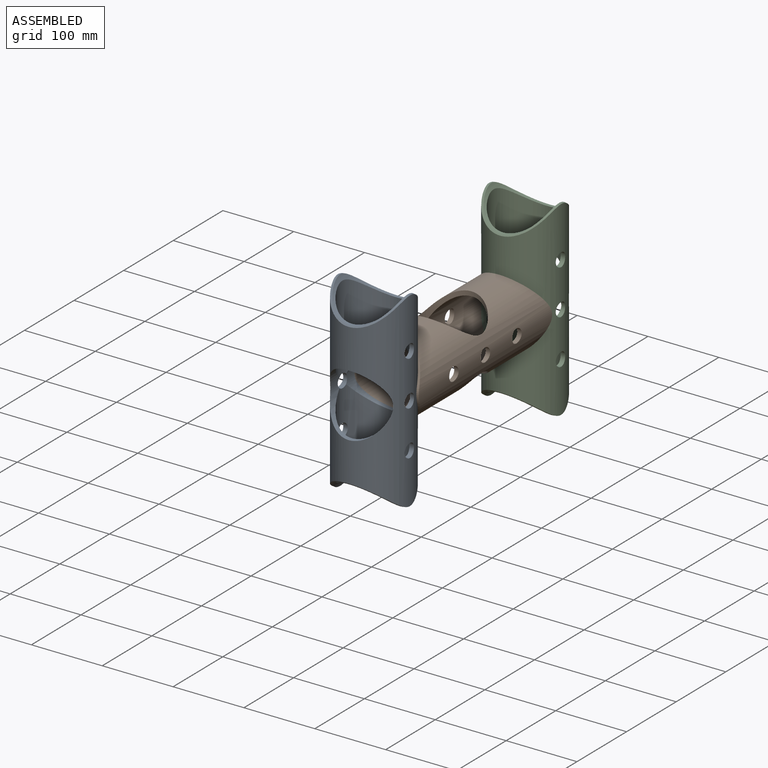
[diagram: assembled view]
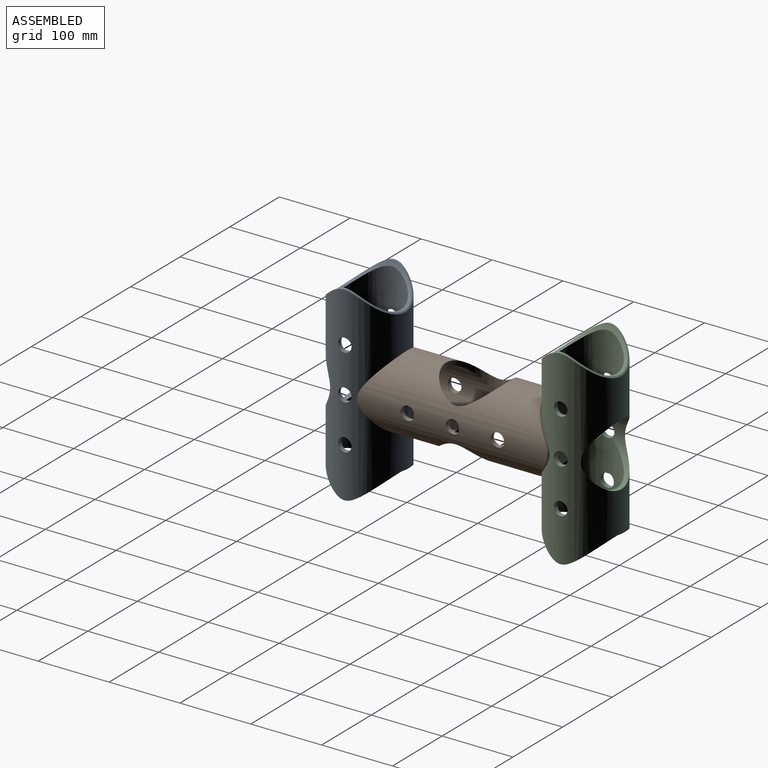
[diagram: assembled view, second angle]
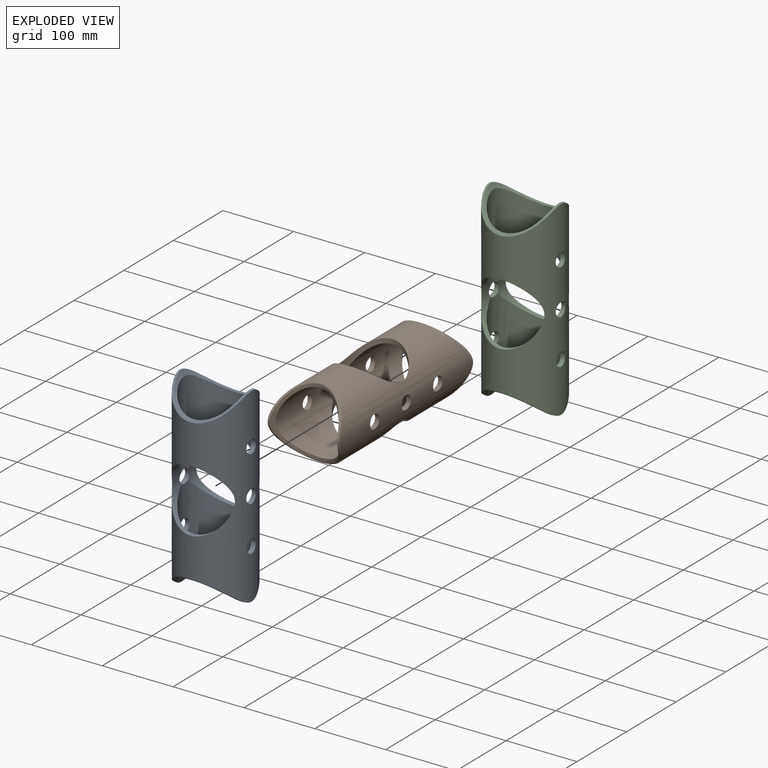
[diagram: exploded view]
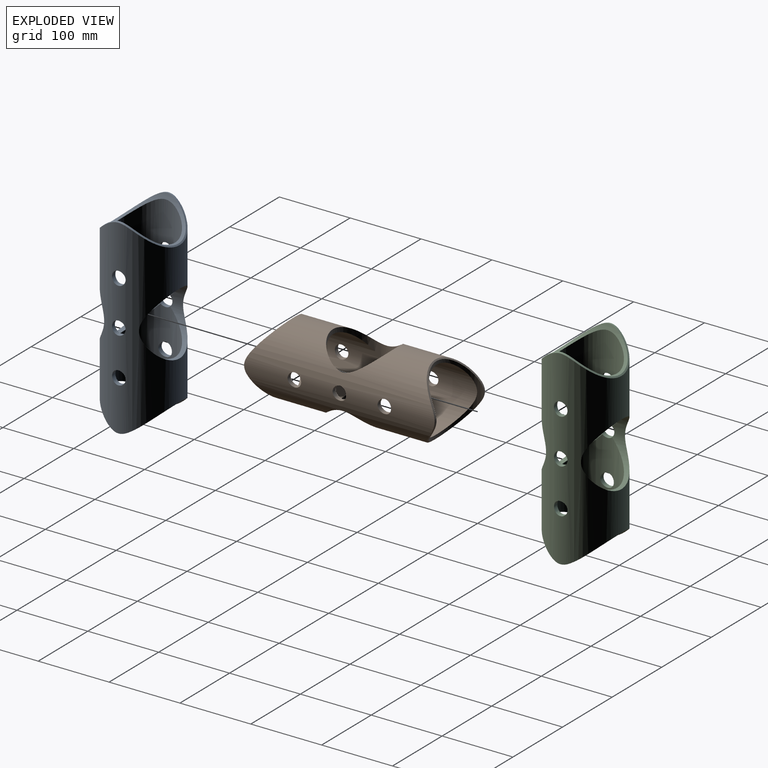
[diagram: exploded view, second angle]
ASSEMBLY  parts=3 mates=4
PART A: 17 faces, bbox 101.6x270x101.6 mm
  f0: cylinder r=50.8mm len=268.88mm, axis (0,1,0), area 57538.7mm2, adj f5,f6,f7,f8,f9,f10,f11,f12
  f1: cylinder r=44.45mm len=121.08mm, axis (0,1,0), area 23143.9mm2, adj f3,f9,f10,f11,f12,f15,f16
  f2: cylinder r=44.45mm len=121.08mm, axis (0,1,0), area 23145.3mm2, adj f4,f9,f10,f11,f12,f13,f14
  f3: cylinder r=50.8mm len=98.45mm, axis (0,0,1), area 1674.1mm2, adj f1,f7,f8
  f4: cylinder r=50.8mm len=98.45mm, axis (0,0,1), area 1674.1mm2, adj f2,f5,f6
  f5: bspline ~101.6x50.81mm, area 469.2mm2, adj f0,f4,f6
  f6: bspline ~101.6x50.81mm, area 469.2mm2, adj f0,f4,f5
  f7: bspline ~101.6x50.81mm, area 469.2mm2, adj f0,f3,f8
  f8: bspline ~101.6x50.81mm, area 469.2mm2, adj f0,f3,f7
  f9: cylinder r=44.45mm len=88.9mm, axis (0,0,-1), area 2816.5mm2, adj f0,f1,f2,f11,f12
  f10: cylinder r=44.45mm len=88.9mm, axis (0,0,-1), area 2857.7mm2, adj f0,f1,f2,f11,f12
  f11: cylinder r=9.53mm len=19.05mm, axis (1,0,0), area 393.4mm2, adj f0,f1,f2,f9,f10
  f12: cylinder r=9.53mm len=19.05mm, axis (1,0,0), area 353mm2, adj f0,f1,f2,f9,f10
  f13: cylinder r=9.53mm len=19.05mm, axis (1,0,0), area 428.3mm2, adj f0,f2
  f14: cylinder r=9.53mm len=19.05mm, axis (1,0,0), area 387.9mm2, adj f0,f2
  f15: cylinder r=9.53mm len=19.05mm, axis (1,0,0), area 428.3mm2, adj f0,f1
  f16: cylinder r=9.53mm len=19.05mm, axis (1,0,0), area 387.9mm2, adj f0,f1
PART B: same geometry as A
PART C: same geometry as A
PLACE A rot(axis=(1,0,0),90deg) t=(0,-152.4,0)mm
PLACE B at identity fixed
PLACE C rot(axis=(1,0,0),90deg) t=(0,152.4,0)mm
MATE cylindrical C.f9 <-> B.f0  axis (0,1,0) through (0,123.56,0)mm
MATE cylindrical B.f3 <-> C.f0  axis (0,0,1) through (0,152.4,0)mm
MATE cylindrical A.f9 <-> B.f0  axis (0,1,0) through (0,-123.56,0)mm
MATE cylindrical B.f4 <-> A.f0  axis (0,0,1) through (0,-152.4,0)mm
